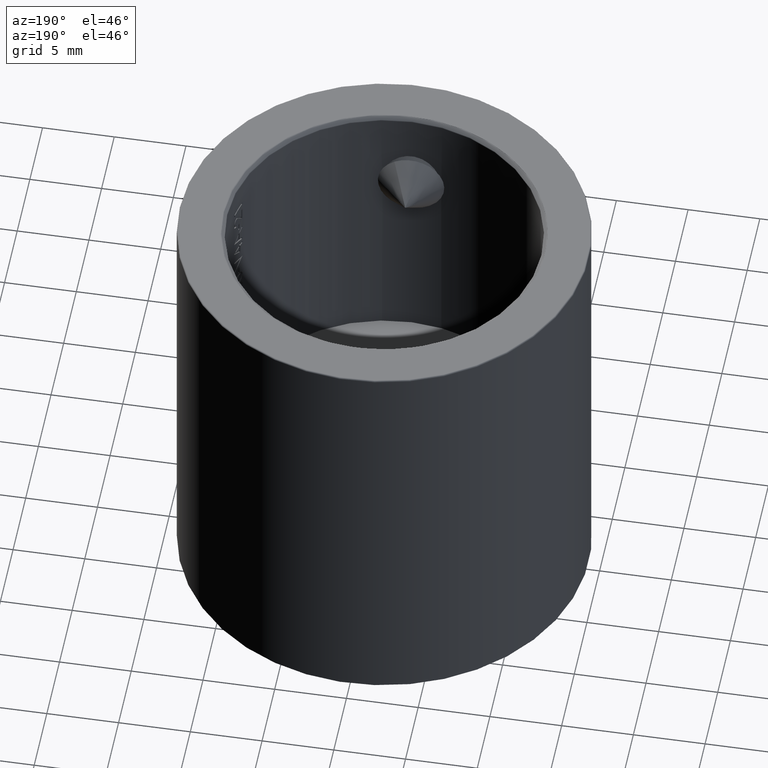
[diagram: clean part render]
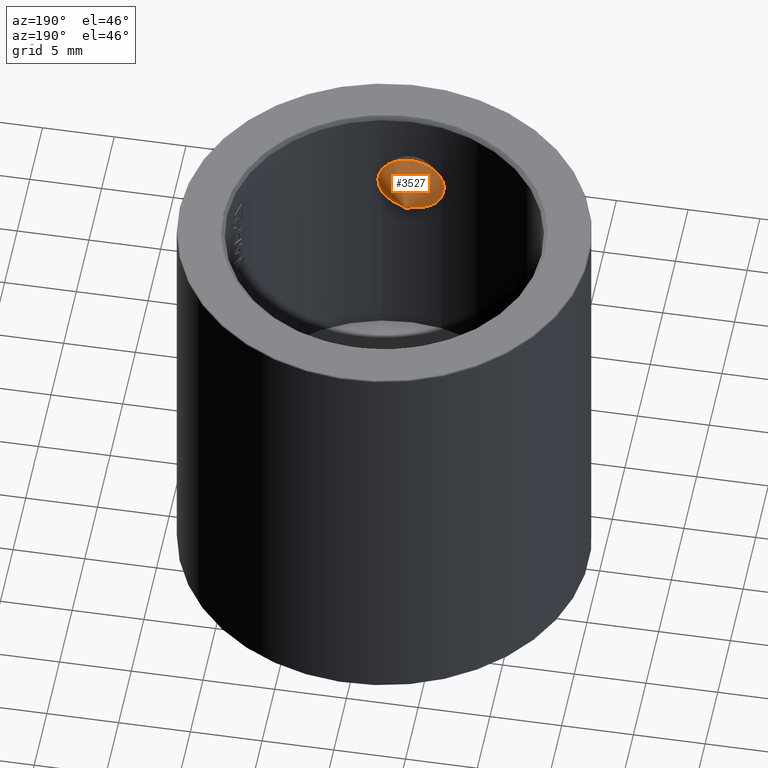
[diagram: same view with one face highlighted and labeled with its STEP entity id]
A machine part, auxiliary view. The second image highlights one B-rep face of the part: STEP entity #3527.
In plain terms, the highlighted conical surface has half-angle 45 deg.
Its self-contained STEP definition (entity closure, byte-faithful):
#219 = ORIENTED_EDGE ( 'NONE', *, *, #11923, .T. ) ;
#1239 = EDGE_LOOP ( 'NONE', ( #219 ) ) ;
#1647 = DIRECTION ( 'NONE',  ( 0.000000000000000000, 0.000000000000000000, 1.000000000000000000 ) ) ;
#1769 = EDGE_LOOP ( 'NONE', ( #6093 ) ) ;
#1774 = AXIS2_PLACEMENT_3D ( 'NONE', #9619, #7313, #8492 ) ;
#2308 = CIRCLE ( 'NONE', #1774, 0.005000000000000000104 ) ;
#2538 = CARTESIAN_POINT ( 'NONE',  ( 3.688266861213938430, 0.000000000000000000, 0.000000000000000000 ) ) ;
#3072 = CARTESIAN_POINT ( 'NONE',  ( 3.688266861213938430, 2.316733138786049473, 0.000000000000000000 ) ) ;
#3341 = VERTEX_POINT ( 'NONE', #3072 ) ;
#3527 = ADVANCED_FACE ( 'NONE', ( #7005, #5297 ), #15210, .T. ) ;
#3878 = DIRECTION ( 'NONE',  ( -1.871950039189439080E-16, 1.000000000000000000, 0.000000000000000000 ) ) ;
#4262 = VERTEX_POINT ( 'NONE', #6610 ) ;
#5297 = FACE_BOUND ( 'NONE', #1239, .T. ) ;
#6093 = ORIENTED_EDGE ( 'NONE', *, *, #10413, .F. ) ;
#6610 = CARTESIAN_POINT ( 'NONE',  ( 5.999999999999998224, 0.000000000000000000, 0.005000000000000000104 ) ) ;
#6996 = AXIS2_PLACEMENT_3D ( 'NONE', #2538, #7341, #3878 ) ;
#7005 = FACE_OUTER_BOUND ( 'NONE', #1769, .T. ) ;
#7313 = DIRECTION ( 'NONE',  ( -1.000000000000000000, -0.000000000000000000, -0.000000000000000000 ) ) ;
#7341 = DIRECTION ( 'NONE',  ( -1.000000000000000000, -1.224606353822377258E-16, -0.000000000000000000 ) ) ;
#8492 = DIRECTION ( 'NONE',  ( 0.000000000000000000, 0.000000000000000000, 1.000000000000000000 ) ) ;
#9619 = CARTESIAN_POINT ( 'NONE',  ( 5.999999999999998224, 0.000000000000000000, 0.000000000000000000 ) ) ;
#9694 = AXIS2_PLACEMENT_3D ( 'NONE', #13709, #13499, #1647 ) ;
#10413 = EDGE_CURVE ( 'NONE', #3341, #3341, #11257, .T. ) ;
#11257 = CIRCLE ( 'NONE', #6996, 2.316733138786049473 ) ;
#11923 = EDGE_CURVE ( 'NONE', #4262, #4262, #2308, .T. ) ;
#13499 = DIRECTION ( 'NONE',  ( -1.000000000000000000, -0.000000000000000000, -0.000000000000000000 ) ) ;
#13709 = CARTESIAN_POINT ( 'NONE',  ( 3.504999999999987459, 0.000000000000000000, 0.000000000000000000 ) ) ;
#15210 = CONICAL_SURFACE ( 'NONE', #9694, 2.500000000000000000, 0.7853981633974461696 ) ;